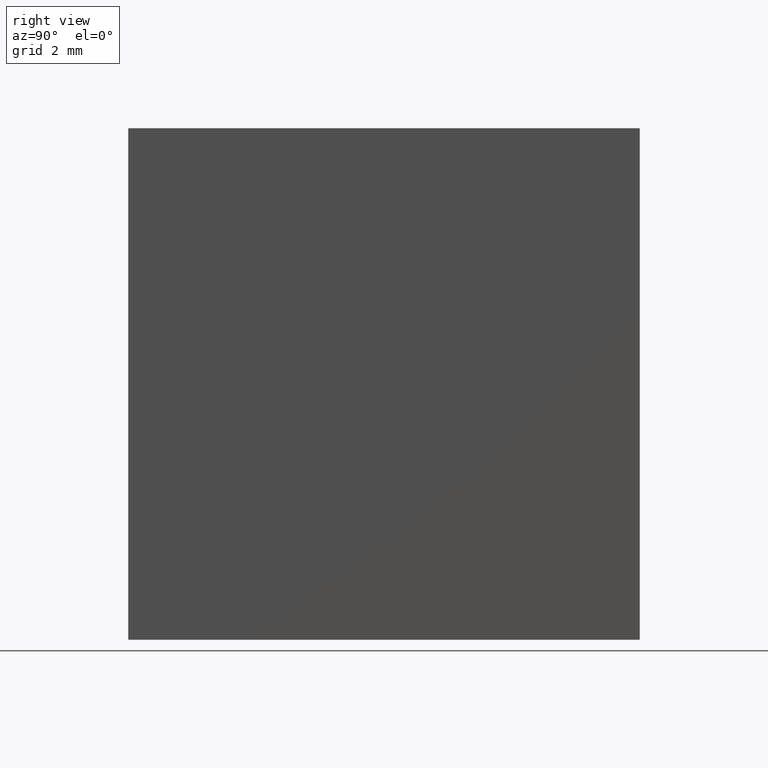
[diagram: clean part render]
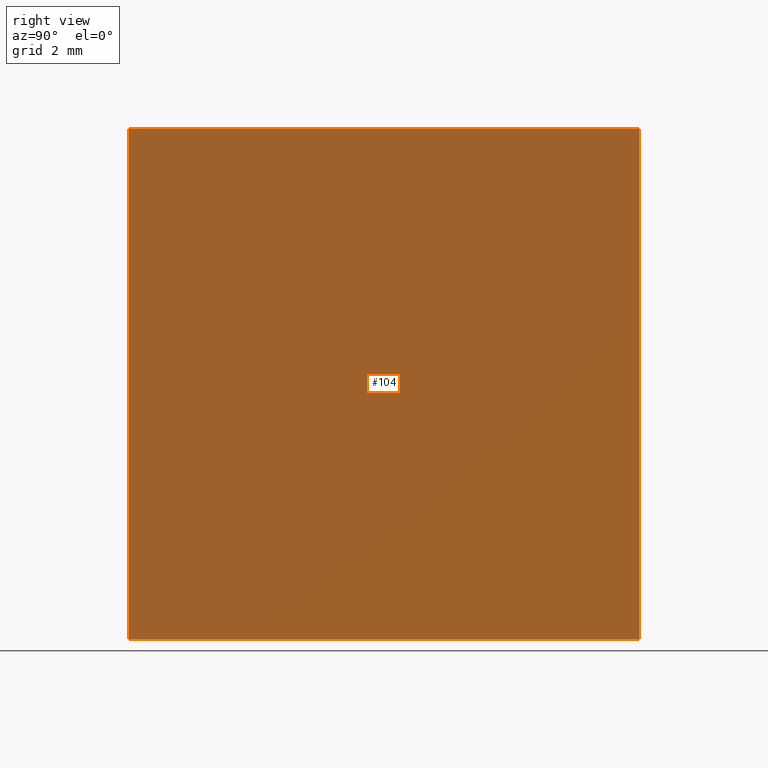
[diagram: same view with one face highlighted and labeled with its STEP entity id]
A machine part, right view. The second image highlights one B-rep face of the part: STEP entity #104.
In plain terms, the highlighted planar face has unit normal (-1, 0, 0).
Its self-contained STEP definition (entity closure, byte-faithful):
#1 = DIRECTION ( 'NONE',  ( -1.000000000000000000, 0.000000000000000000, 0.000000000000000000 ) ) ;
#3 = VERTEX_POINT ( 'NONE', #7 ) ;
#7 = CARTESIAN_POINT ( 'NONE',  ( -101.2790394997939529, -5.000000000000000888, 0.000000000000000000 ) ) ;
#27 = VERTEX_POINT ( 'NONE', #222 ) ;
#35 = ORIENTED_EDGE ( 'NONE', *, *, #41, .T. ) ;
#41 = EDGE_CURVE ( 'NONE', #57, #3, #199, .T. ) ;
#46 = VECTOR ( 'NONE', #82, 1000.000000000000000 ) ;
#56 = EDGE_LOOP ( 'NONE', ( #156, #158, #99, #35 ) ) ;
#57 = VERTEX_POINT ( 'NONE', #225 ) ;
#61 = VERTEX_POINT ( 'NONE', #87 ) ;
#65 = LINE ( 'NONE', #123, #206 ) ;
#82 = DIRECTION ( 'NONE',  ( -0.000000000000000000, -0.000000000000000000, -1.000000000000000000 ) ) ;
#86 = DIRECTION ( 'NONE',  ( -0.000000000000000000, 1.000000000000000000, -0.000000000000000000 ) ) ;
#87 = CARTESIAN_POINT ( 'NONE',  ( -101.2790394997939529, 5.000000000000000888, 10.00000000000000000 ) ) ;
#99 = ORIENTED_EDGE ( 'NONE', *, *, #255, .F. ) ;
#104 = ADVANCED_FACE ( 'NONE', ( #244 ), #217, .F. ) ;
#123 = CARTESIAN_POINT ( 'NONE',  ( -101.2790394997939529, 5.000000000000000888, 10.00000000000000000 ) ) ;
#131 = EDGE_CURVE ( 'NONE', #3, #27, #270, .T. ) ;
#140 = CARTESIAN_POINT ( 'NONE',  ( -101.2790394997939529, 5.000000000000000888, 0.000000000000000000 ) ) ;
#144 = VECTOR ( 'NONE', #86, 1000.000000000000000 ) ;
#156 = ORIENTED_EDGE ( 'NONE', *, *, #131, .T. ) ;
#158 = ORIENTED_EDGE ( 'NONE', *, *, #171, .F. ) ;
#166 = DIRECTION ( 'NONE',  ( -0.000000000000000000, 1.000000000000000000, -0.000000000000000000 ) ) ;
#170 = DIRECTION ( 'NONE',  ( 0.000000000000000000, 0.000000000000000000, 1.000000000000000000 ) ) ;
#171 = EDGE_CURVE ( 'NONE', #61, #27, #221, .T. ) ;
#179 = CARTESIAN_POINT ( 'NONE',  ( -101.2790394997939529, -5.000000000000000888, 10.00000000000000000 ) ) ;
#199 = LINE ( 'NONE', #179, #210 ) ;
#206 = VECTOR ( 'NONE', #166, 1000.000000000000000 ) ;
#210 = VECTOR ( 'NONE', #250, 1000.000000000000000 ) ;
#217 = PLANE ( 'NONE',  #260 ) ;
#221 = LINE ( 'NONE', #247, #46 ) ;
#222 = CARTESIAN_POINT ( 'NONE',  ( -101.2790394997939529, 5.000000000000000888, 0.000000000000000000 ) ) ;
#225 = CARTESIAN_POINT ( 'NONE',  ( -101.2790394997939529, -5.000000000000000888, 10.00000000000000000 ) ) ;
#230 = CARTESIAN_POINT ( 'NONE',  ( -101.2790394997939529, 5.000000000000000888, 10.00000000000000000 ) ) ;
#244 = FACE_OUTER_BOUND ( 'NONE', #56, .T. ) ;
#247 = CARTESIAN_POINT ( 'NONE',  ( -101.2790394997939529, 5.000000000000000888, 10.00000000000000000 ) ) ;
#250 = DIRECTION ( 'NONE',  ( -0.000000000000000000, -0.000000000000000000, -1.000000000000000000 ) ) ;
#255 = EDGE_CURVE ( 'NONE', #57, #61, #65, .T. ) ;
#260 = AXIS2_PLACEMENT_3D ( 'NONE', #230, #1, #170 ) ;
#270 = LINE ( 'NONE', #140, #144 ) ;